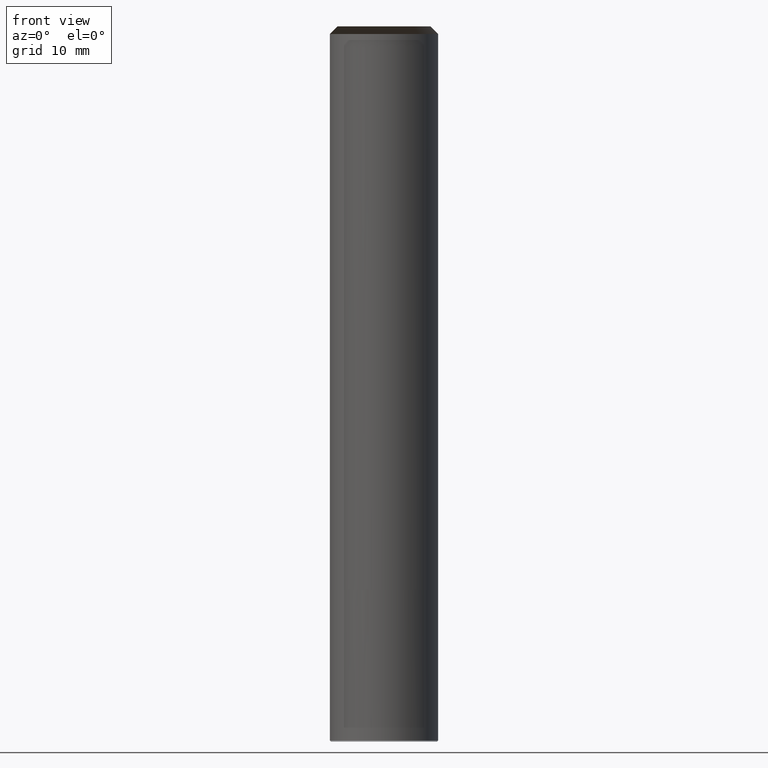
[diagram: clean part render]
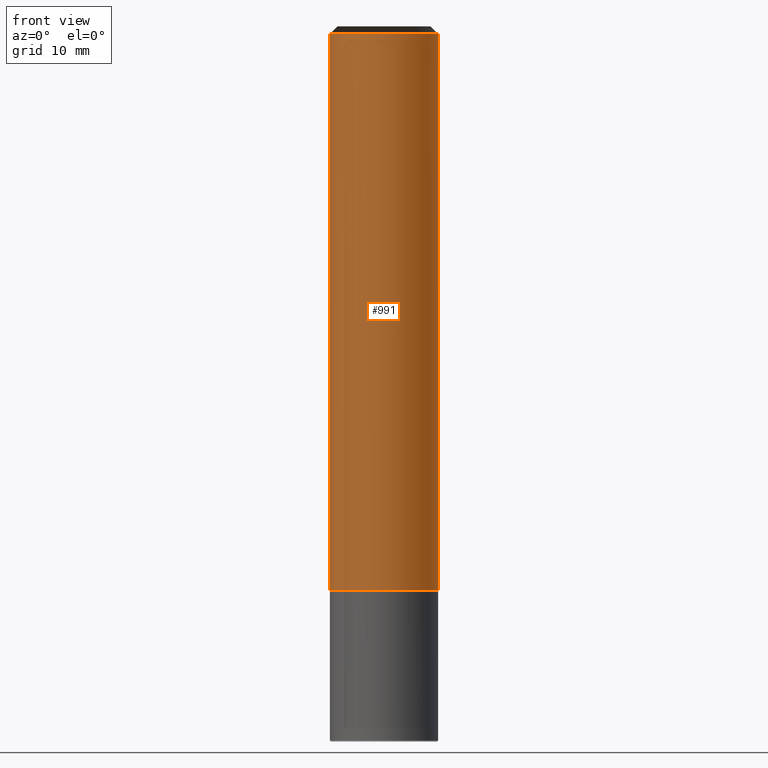
[diagram: same view with one face highlighted and labeled with its STEP entity id]
A machine part, front view. The second image highlights one B-rep face of the part: STEP entity #991.
In plain terms, the highlighted face is a freeform B-spline surface patch.
Its self-contained STEP definition (entity closure, byte-faithful):
#665=CARTESIAN_POINT('',(5.0,0.0,0.0));
#669=CARTESIAN_POINT('',(-5.0,0.0,0.0));
#670=CARTESIAN_POINT('',(5.0,0.0,51.299));
#674=CARTESIAN_POINT('',(-5.0,0.0,51.299));
#681=CARTESIAN_POINT('',(-5.0,-5.0,0.0));
#682=CARTESIAN_POINT('',(0.0,-5.0,0.0));
#683=CARTESIAN_POINT('',(5.0,-5.0,0.0));
#684=CARTESIAN_POINT('',(-5.0,-5.0,51.299));
#685=CARTESIAN_POINT('',(0.0,-5.0,51.299));
#686=CARTESIAN_POINT('',(5.0,-5.0,51.299));
#972=(
BOUNDED_SURFACE()
B_SPLINE_SURFACE(1,2,(
(#669,#681,#682,#683,#665),
(#674,#684,#685,#686,#670)
), .UNSPECIFIED.,.F.,.F.,.F.)
B_SPLINE_SURFACE_WITH_KNOTS((2,2),(3,2,3),(
0.0,1.0),(
0.0,0.5,1.0), .UNSPECIFIED.)
GEOMETRIC_REPRESENTATION_ITEM()
RATIONAL_B_SPLINE_SURFACE(((1.0,0.707106781187,1.0,0.707106781187,1.0),
(1.0,0.707106781187,1.0,0.707106781187,1.0)
))
REPRESENTATION_ITEM('')
SURFACE()
);
#973=(
BOUNDED_CURVE()
B_SPLINE_CURVE(1,(#674,#669),.UNSPECIFIED.,.F.,.F.)
B_SPLINE_CURVE_WITH_KNOTS((2,2),
(0.0,1.0),.UNSPECIFIED.)
CURVE()
GEOMETRIC_REPRESENTATION_ITEM()
RATIONAL_B_SPLINE_CURVE((1.0,1.0))
REPRESENTATION_ITEM('')
);
#974=(
BOUNDED_CURVE()
B_SPLINE_CURVE(2,(#669,#681,#682,#683,#665),.UNSPECIFIED.,.F.,.F.)
B_SPLINE_CURVE_WITH_KNOTS((3,2,3),
(0.0,0.5,1.0),.UNSPECIFIED.)
CURVE()
GEOMETRIC_REPRESENTATION_ITEM()
RATIONAL_B_SPLINE_CURVE((1.0,0.707106781187,1.0,0.707106781187,1.0))
REPRESENTATION_ITEM('')
);
#975=(
BOUNDED_CURVE()
B_SPLINE_CURVE(1,(#665,#670),.UNSPECIFIED.,.F.,.F.)
B_SPLINE_CURVE_WITH_KNOTS((2,2),
(0.0,1.0),.UNSPECIFIED.)
CURVE()
GEOMETRIC_REPRESENTATION_ITEM()
RATIONAL_B_SPLINE_CURVE((1.0,1.0))
REPRESENTATION_ITEM('')
);
#976=(
BOUNDED_CURVE()
B_SPLINE_CURVE(2,(#670,#686,#685,#684,#674),.UNSPECIFIED.,.F.,.F.)
B_SPLINE_CURVE_WITH_KNOTS((3,2,3),
(0.0,0.5,1.0),.UNSPECIFIED.)
CURVE()
GEOMETRIC_REPRESENTATION_ITEM()
RATIONAL_B_SPLINE_CURVE((1.0,0.707106781187,1.0,0.707106781187,1.0))
REPRESENTATION_ITEM('')
);
#977=VERTEX_POINT('',#665);
#978=VERTEX_POINT('',#669);
#979=VERTEX_POINT('',#670);
#980=VERTEX_POINT('',#674);
#981=EDGE_CURVE('',#980,#978,#973,.T.);
#982=EDGE_CURVE('',#978,#977,#974,.T.);
#983=EDGE_CURVE('',#977,#979,#975,.T.);
#984=EDGE_CURVE('',#979,#980,#976,.T.);
#985=ORIENTED_EDGE('',*,*,#981,.T.);
#986=ORIENTED_EDGE('',*,*,#982,.T.);
#987=ORIENTED_EDGE('',*,*,#983,.T.);
#988=ORIENTED_EDGE('',*,*,#984,.T.);
#989=EDGE_LOOP('',(#985,#986,#987,#988));
#990=FACE_OUTER_BOUND('',#989,.T.);
#991=ADVANCED_FACE('',(#990),#972,.T.);